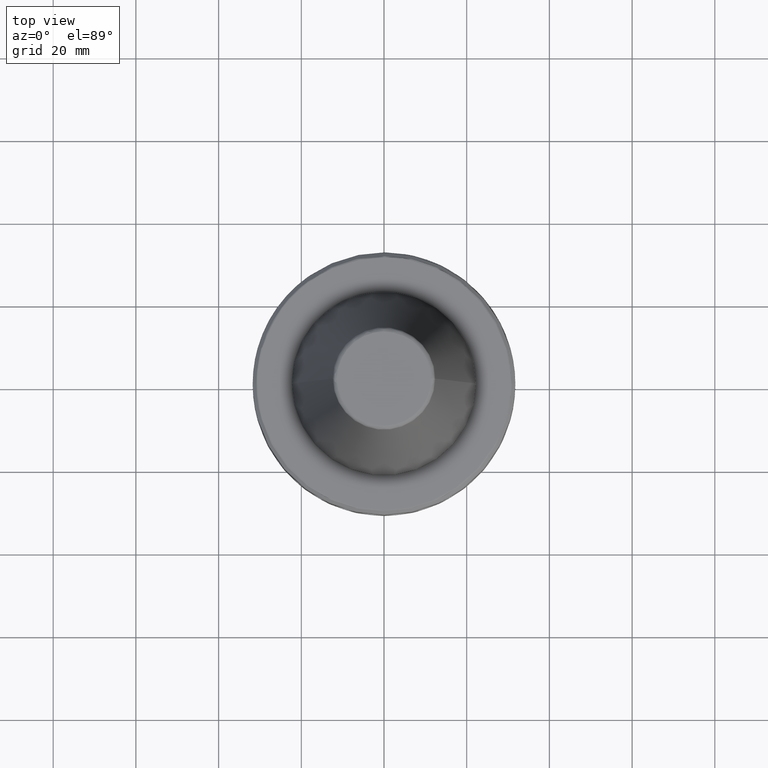
[diagram: clean part render]
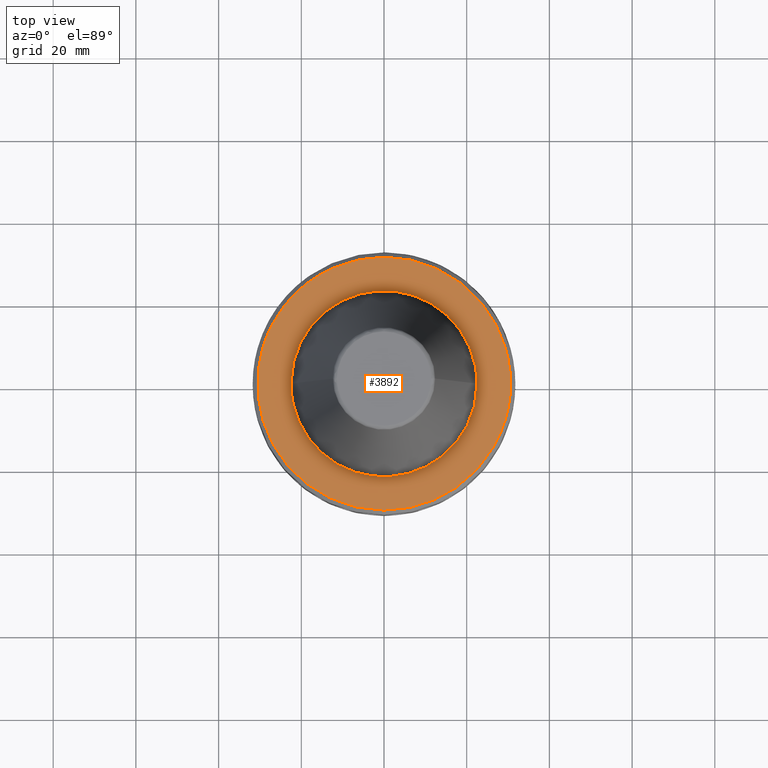
[diagram: same view with one face highlighted and labeled with its STEP entity id]
A machine part, top view. The second image highlights one B-rep face of the part: STEP entity #3892.
In plain terms, the highlighted planar face has unit normal (0, 0, 1).
Its self-contained STEP definition (entity closure, byte-faithful):
#3 = EDGE_CURVE ( 'NONE', #2676, #167, #1679, .T. ) ;
#4 = CARTESIAN_POINT ( 'NONE',  ( -12.10176357993545400, 28.08831770798232300, -3.199999999999999700 ) ) ;
#6 = CARTESIAN_POINT ( 'NONE',  ( -11.95872026362621700, 28.14951867898243900, -3.200000000000000600 ) ) ;
#9 = CARTESIAN_POINT ( 'NONE',  ( -11.74385340892359900, 28.24048383202686100, -3.199999999999999700 ) ) ;
#12 = CARTESIAN_POINT ( 'NONE',  ( -11.24038425294622300, 28.44688173160703600, -3.199999999999999700 ) ) ;
#14 = CARTESIAN_POINT ( 'NONE',  ( -10.22499329430632600, 28.83626103400671100, -3.200000000000001100 ) ) ;
#17 = CARTESIAN_POINT ( 'NONE',  ( -9.340167935440471000, 29.12987215590241500, -3.200000000000000200 ) ) ;
#19 = CARTESIAN_POINT ( 'NONE',  ( -8.594763330018802000, 29.35224666532914000, -3.199999999999999700 ) ) ;
#23 = CARTESIAN_POINT ( 'NONE',  ( -8.442993445781287000, 29.39627059819669700, -3.199999999999999700 ) ) ;
#34 = CARTESIAN_POINT ( 'NONE',  ( -29.30593451889331600, -8.749999999999996400, -3.199999999999998800 ) ) ;
#41 = CARTESIAN_POINT ( 'NONE',  ( -8.141340568208146800, 29.48124923292407100, -3.200000000000000200 ) ) ;
#47 = CARTESIAN_POINT ( 'NONE',  ( -7.688059179597157600, 29.60519698498957200, -3.200000000000000200 ) ) ;
#53 = CARTESIAN_POINT ( 'NONE',  ( -6.624788100412466500, 29.86976700629700000, -3.200000000000000600 ) ) ;
#57 = CARTESIAN_POINT ( 'NONE',  ( -5.703788022667265700, 30.05429890996831700, -3.200000000000000600 ) ) ;
#59 = CARTESIAN_POINT ( 'NONE',  ( -3.848954711156225000, 30.36703951690236300, -3.199999999999999700 ) ) ;
#63 = CARTESIAN_POINT ( 'NONE',  ( -2.603266312792917400, 30.49913331156266900, -3.199999999999999700 ) ) ;
#69 = CARTESIAN_POINT ( 'NONE',  ( -1.037282440228858100, 30.56832190550300200, -3.199999999999999700 ) ) ;
#73 = CARTESIAN_POINT ( 'NONE',  ( -0.7285515701826120700, 30.57722589314201800, -3.200000000000000200 ) ) ;
#76 = CARTESIAN_POINT ( 'NONE',  ( -0.1069271606581389100, 30.58574494882751400, -3.199999999999999700 ) ) ;
#83 = CARTESIAN_POINT ( 'NONE',  ( 0.8252062185939788000, 30.58430088161414800, -3.199999999999999700 ) ) ;
#86 = CARTESIAN_POINT ( 'NONE',  ( 1.756429892742337000, 30.54018886217601600, -3.200000000000001500 ) ) ;
#89 = CARTESIAN_POINT ( 'NONE',  ( 2.454392795801720400, 30.48577087148502700, -3.200000000000001100 ) ) ;
#91 = CARTESIAN_POINT ( 'NONE',  ( 2.528533460625868900, 30.47970956005749700, -3.200000000000000200 ) ) ;
#98 = CARTESIAN_POINT ( 'NONE',  ( 2.680059272117456500, 30.46677238501864700, -3.199999999999999700 ) ) ;
#104 = CARTESIAN_POINT ( 'NONE',  ( 2.907181702349010500, 30.44653720225917900, -3.200000000000000200 ) ) ;
#107 = CARTESIAN_POINT ( 'NONE',  ( 3.435970030515198600, 30.39351583441197100, -3.200000000000000600 ) ) ;
#115 = CARTESIAN_POINT ( 'NONE',  ( 4.488890650684448100, 30.26424933308379300, -3.200000000000001100 ) ) ;
#118 = CARTESIAN_POINT ( 'NONE',  ( 6.576107746370472500, 29.91282126789227600, -3.200000000000000200 ) ) ;
#125 = CARTESIAN_POINT ( 'NONE',  ( 8.333223866125692300, 29.45234853338218900, -3.200000000000001100 ) ) ;
#129 = CARTESIAN_POINT ( 'NONE',  ( 11.80488663214476100, 28.31907149285310900, -3.199999999999999700 ) ) ;
#131 = CARTESIAN_POINT ( 'NONE',  ( 13.99881594507354500, 27.30134385078334700, -3.200000000000000200 ) ) ;
#133 = CARTESIAN_POINT ( 'NONE',  ( 16.13498759199677200, 25.98207429179373300, -3.200000000000000600 ) ) ;
#139 = CARTESIAN_POINT ( 'NONE',  ( 16.20252111302109900, 25.94001894739811600, -3.200000000000000200 ) ) ;
#144 = CARTESIAN_POINT ( 'NONE',  ( 16.33427142386522800, 25.85726144149187200, -3.199999999999999700 ) ) ;
#152 = CARTESIAN_POINT ( 'NONE',  ( 16.53138120580203100, 25.73240088654582200, -3.200000000000000200 ) ) ;
#161 = CARTESIAN_POINT ( 'NONE',  ( 16.98769424001548200, 25.43598951906483700, -3.199999999999999700 ) ) ;
#163 = CARTESIAN_POINT ( 'NONE',  ( 17.88588114721942900, 24.82288649367547600, -3.200000000000000600 ) ) ;
#167 = VERTEX_POINT ( 'NONE', #2241 ) ;
#172 = CARTESIAN_POINT ( 'NONE',  ( 18.63100279129773500, 24.26260340260906600, -3.200000000000000200 ) ) ;
#180 = CARTESIAN_POINT ( 'NONE',  ( 19.23818591257920800, 23.77638626440856500, -3.199999999999999700 ) ) ;
#185 = CARTESIAN_POINT ( 'NONE',  ( 19.36078262649303700, 23.67667543168819600, -3.199999999999998800 ) ) ;
#186 = CARTESIAN_POINT ( 'NONE',  ( 19.60237854230756900, 23.47705769608395700, -3.199999999999999700 ) ) ;
#192 = CARTESIAN_POINT ( 'NONE',  ( 19.96233499367379600, 23.17496761743385400, -3.200000000000001100 ) ) ;
#197 = CARTESIAN_POINT ( 'NONE',  ( 20.78517142370580800, 22.45144644054389700, -3.200000000000000600 ) ) ;
#198 = CARTESIAN_POINT ( 'NONE',  ( 21.46121072403760300, 21.79932372885590300, -3.199999999999999700 ) ) ;
#206 = CARTESIAN_POINT ( 'NONE',  ( 24.72355445173918300, 18.00675945256601200, -3.199999999999999700 ) ) ;
#212 = CARTESIAN_POINT ( 'NONE',  ( 25.08445269890755500, 17.50055599941463700, -3.199999999999999300 ) ) ;
#217 = CARTESIAN_POINT ( 'NONE',  ( 25.61393462944857900, 16.73340307643418300, -3.200000000000000200 ) ) ;
#222 = CARTESIAN_POINT ( 'NONE',  ( 26.10782023935503900, 15.94270692369355700, -3.200000000000000200 ) ) ;
#225 = CARTESIAN_POINT ( 'NONE',  ( 26.46043628646762600, 15.33791319425800600, -3.199999999999999700 ) ) ;
#228 = CARTESIAN_POINT ( 'NONE',  ( 26.49765628487155300, 15.27351905694540000, -3.199999999999998400 ) ) ;
#230 = CARTESIAN_POINT ( 'NONE',  ( 26.57327955334342600, 15.14158967653129700, -3.200000000000000600 ) ) ;
#231 = CARTESIAN_POINT ( 'NONE',  ( 26.68593816532891300, 14.94335966607924600, -3.200000000000000600 ) ) ;
#232 = CARTESIAN_POINT ( 'NONE',  ( -18.49999999999998900, 24.35467712833949600, -3.199999999999994400 ) ) ;
#235 = CARTESIAN_POINT ( 'NONE',  ( 26.94337422490542600, 14.47847139620824700, -3.200000000000001100 ) ) ;
#236 = CARTESIAN_POINT ( 'NONE',  ( 27.43651020383328300, 13.53928854120142800, -3.200000000000000200 ) ) ;
#243 = CARTESIAN_POINT ( 'NONE',  ( 28.33583760078836600, 11.62329757012845600, -3.199999999999998800 ) ) ;
#254 = CARTESIAN_POINT ( 'NONE',  ( 29.30593451889330900, 8.750000000000012400, -3.199999999999994400 ) ) ;
#269 = DIRECTION ( 'NONE',  ( 1.000000000000000000, 0.0000000000000000000, 0.0000000000000000000 ) ) ;
#278 = AXIS2_PLACEMENT_3D ( 'NONE', #4437, #2441, #269 ) ;
#308 = CARTESIAN_POINT ( 'NONE',  ( 29.30593451889330900, -8.750000000000008900, -3.199999999999994400 ) ) ;
#325 = CARTESIAN_POINT ( 'NONE',  ( 28.85918037032343300, -10.24629117988947200, -3.200000000000000600 ) ) ;
#330 = CARTESIAN_POINT ( 'NONE',  ( 28.30117587103202900, -11.69968984090415300, -3.199999999999999700 ) ) ;
#340 = CARTESIAN_POINT ( 'NONE',  ( 27.61100680695616900, -13.15427429998601200, -3.199999999999999700 ) ) ;
#346 = CARTESIAN_POINT ( 'NONE',  ( 27.58831379343183700, -13.20180910046761400, -3.200000000000000600 ) ) ;
#352 = CARTESIAN_POINT ( 'NONE',  ( 27.54438001541331400, -13.29323302809286000, -3.199999999999999300 ) ) ;
#365 = CARTESIAN_POINT ( 'NONE',  ( 27.47815279795422300, -13.43017972973252000, -3.199999999999999300 ) ) ;
#375 = CARTESIAN_POINT ( 'NONE',  ( 28.95764183663448000, 9.916519147392797600, -3.200000000000000200 ) ) ;
#377 = CARTESIAN_POINT ( 'NONE',  ( 27.32133677086397900, -13.74839770497084500, -3.199999999999999700 ) ) ;
#381 = CARTESIAN_POINT ( 'NONE',  ( 26.99856130460733200, -14.37953634109730100, -3.199999999999999300 ) ) ;
#388 = CARTESIAN_POINT ( 'NONE',  ( 26.31643672378944400, -15.62062435594946100, -3.199999999999999700 ) ) ;
#397 = CARTESIAN_POINT ( 'NONE',  ( 25.66906082885188300, -16.64808964170717700, -3.200000000000000600 ) ) ;
#403 = CARTESIAN_POINT ( 'NONE',  ( 25.18089566416734100, -17.35872434408018700, -3.200000000000000200 ) ) ;
#407 = CARTESIAN_POINT ( 'NONE',  ( 25.15049554832750500, -17.40274506740025400, -3.200000000000000200 ) ) ;
#410 = CARTESIAN_POINT ( 'NONE',  ( 25.09107183108401200, -17.48831565733108600, -3.200000000000000200 ) ) ;
#412 = CARTESIAN_POINT ( 'NONE',  ( 25.00162825173771700, -17.61641936752205600, -3.199999999999999300 ) ) ;
#417 = CARTESIAN_POINT ( 'NONE',  ( 24.79077054222909000, -17.91356280169729900, -3.199999999999999300 ) ) ;
#421 = CARTESIAN_POINT ( 'NONE',  ( 24.36043102574261000, -18.50078877829975700, -3.200000000000000600 ) ) ;
#424 = CARTESIAN_POINT ( 'NONE',  ( 23.46525560289278200, -19.64699716451254500, -3.199999999999999700 ) ) ;
#426 = CARTESIAN_POINT ( 'NONE',  ( 22.63882571494687600, -20.58104395213699800, -3.199999999999999700 ) ) ;
#428 = CARTESIAN_POINT ( 'NONE',  ( 21.98943496480729800, -21.25737027114778100, -3.199999999999999300 ) ) ;
#436 = CARTESIAN_POINT ( 'NONE',  ( 21.91487604513283200, -21.33423715766574700, -3.200000000000000200 ) ) ;
#438 = CARTESIAN_POINT ( 'NONE',  ( 21.76708313657502800, -21.48502183609782200, -3.200000000000000200 ) ) ;
#439 = CARTESIAN_POINT ( 'NONE',  ( 21.54431431264827200, -21.70996927688107200, -3.200000000000000200 ) ) ;
#442 = CARTESIAN_POINT ( 'NONE',  ( 21.01696416252214700, -22.22623960065464400, -3.200000000000000600 ) ) ;
#446 = CARTESIAN_POINT ( 'NONE',  ( 19.93203895174852400, -23.22435209598563000, -3.200000000000000600 ) ) ;
#447 = CARTESIAN_POINT ( 'NONE',  ( 18.95028892447729500, -24.02085740247023800, -3.199999999999999300 ) ) ;
#451 = CARTESIAN_POINT ( 'NONE',  ( 16.91770336017169300, -25.53517509608830600, -3.200000000000001100 ) ) ;
#454 = CARTESIAN_POINT ( 'NONE',  ( 15.48792760817607000, -26.42690957759996500, -3.199999999999999700 ) ) ;
#460 = CARTESIAN_POINT ( 'NONE',  ( 13.89121605744795400, -27.24785232259059200, -3.200000000000000200 ) ) ;
#464 = FACE_BOUND ( 'NONE', #1017, .T. ) ;
#466 = CARTESIAN_POINT ( 'NONE',  ( 13.79955834377742900, -27.29438307718488900, -3.200000000000000600 ) ) ;
#467 = CARTESIAN_POINT ( 'NONE',  ( 13.61336996247140800, -27.38773233229924400, -3.200000000000000600 ) ) ;
#472 = CARTESIAN_POINT ( 'NONE',  ( 13.33348093174324800, -27.52628396578551700, -3.200000000000001100 ) ) ;
#478 = CARTESIAN_POINT ( 'NONE',  ( 12.67616131532697400, -27.83926536628994700, -3.200000000000000600 ) ) ;
#484 = CARTESIAN_POINT ( 'NONE',  ( 11.34454123695877000, -28.42400519011132300, -3.200000000000001100 ) ) ;
#485 = CARTESIAN_POINT ( 'NONE',  ( 10.17404257743922200, -28.85454279249395900, -3.200000000000000200 ) ) ;
#499 = CARTESIAN_POINT ( 'NONE',  ( 9.331192961512581300, -29.12613594598227400, -3.199999999999999700 ) ) ;
#502 = CARTESIAN_POINT ( 'NONE',  ( 9.284161809042903000, -29.14115916764381400, -3.200000000000001100 ) ) ;
#516 = CARTESIAN_POINT ( 'NONE',  ( 9.187465360237558400, -29.17179097118053800, -3.200000000000000200 ) ) ;
#520 = CARTESIAN_POINT ( 'NONE',  ( 9.042334779866017400, -29.21737119050853700, -3.200000000000000200 ) ) ;
#528 = CARTESIAN_POINT ( 'NONE',  ( 8.703095408854482100, -29.32115263376776700, -3.200000000000001100 ) ) ;
#533 = CARTESIAN_POINT ( 'NONE',  ( 8.022211266252952600, -29.51842591292832200, -3.200000000000000600 ) ) ;
#535 = CARTESIAN_POINT ( 'NONE',  ( 6.650821378736091900, -29.87181404181786700, -3.200000000000001100 ) ) ;
#537 = CARTESIAN_POINT ( 'NONE',  ( 5.458850156897941700, -30.10416084469766700, -3.200000000000001100 ) ) ;
#539 = CARTESIAN_POINT ( 'NONE',  ( 4.606748291937109700, -30.23542110148339600, -3.200000000000000200 ) ) ;
#543 = CARTESIAN_POINT ( 'NONE',  ( 4.560392810200784900, -30.24244440558974000, -3.200000000000001100 ) ) ;
#551 = CARTESIAN_POINT ( 'NONE',  ( 4.463888020569185300, -30.25684056681974400, -3.200000000000000200 ) ) ;
#558 = CARTESIAN_POINT ( 'NONE',  ( 4.319105167341851000, -30.27808647421275600, -3.199999999999999700 ) ) ;
#559 = CARTESIAN_POINT ( 'NONE',  ( 3.981098828351871300, -30.32522191696598000, -3.199999999999999300 ) ) ;
#560 = ORIENTED_EDGE ( 'NONE', *, *, #709, .T. ) ;
#580 = CARTESIAN_POINT ( 'NONE',  ( 3.304367424533792600, -30.40973943781708800, -3.200000000000000600 ) ) ;
#581 = EDGE_CURVE ( 'NONE', #633, #3762, #3904, .T. ) ;
#583 = CARTESIAN_POINT ( 'NONE',  ( 1.948029713545151400, -30.53976102089800500, -3.200000000000000600 ) ) ;
#585 = CARTESIAN_POINT ( 'NONE',  ( 0.7805261269506218500, -30.58432787733082800, -3.200000000000001100 ) ) ;
#589 = CARTESIAN_POINT ( 'NONE',  ( -1.561052253901251200, -30.58428797049063900, -3.200000000000001100 ) ) ;
#593 = CARTESIAN_POINT ( 'NONE',  ( -3.114025609281771100, -30.46541640380770500, -3.200000000000001100 ) ) ;
#602 = CARTESIAN_POINT ( 'NONE',  ( -4.705085878607798500, -30.22027126947339000, -3.199999999999999700 ) ) ;
#605 = CARTESIAN_POINT ( 'NONE',  ( -4.757131534844059000, -30.21212539776522700, -3.199999999999999700 ) ) ;
#607 = CARTESIAN_POINT ( 'NONE',  ( -4.857303280934896600, -30.19618385839159900, -3.199999999999999700 ) ) ;
#613 = CARTESIAN_POINT ( 'NONE',  ( -5.007473042370389900, -30.17190452210006100, -3.199999999999999700 ) ) ;
#621 = CARTESIAN_POINT ( 'NONE',  ( -5.357254148481244400, -30.11268354680223800, -3.200000000000000200 ) ) ;
#626 = CARTESIAN_POINT ( 'NONE',  ( -6.054356345081719900, -29.98396483373612800, -3.200000000000000600 ) ) ;
#628 = CARTESIAN_POINT ( 'NONE',  ( -7.438720675797749300, -29.68542035772213000, -3.200000000000001500 ) ) ;
#633 = VERTEX_POINT ( 'NONE', #2975 ) ;
#636 = VERTEX_POINT ( 'NONE', #2949 ) ;
#649 = CARTESIAN_POINT ( 'NONE',  ( -8.608449995008770700, -29.35905586419853500, -3.200000000000001100 ) ) ;
#653 = CARTESIAN_POINT ( 'NONE',  ( -9.429042497914499800, -29.09460387900073300, -3.199999999999999700 ) ) ;
#655 = CARTESIAN_POINT ( 'NONE',  ( -9.479920520539453200, -29.07806852477688500, -3.199999999999999700 ) ) ;
#659 = CARTESIAN_POINT ( 'NONE',  ( -9.578915174285629800, -29.04560989628059900, -3.199999999999998800 ) ) ;
#661 = CARTESIAN_POINT ( 'NONE',  ( -9.727253638796373300, -28.99655467839302500, -3.199999999999999700 ) ) ;
#667 = CARTESIAN_POINT ( 'NONE',  ( -10.07230210989505500, -28.87952157731996600, -3.199999999999999700 ) ) ;
#672 = CARTESIAN_POINT ( 'NONE',  ( -10.75810060105365600, -28.63517167116569700, -3.200000000000001100 ) ) ;
#674 = CARTESIAN_POINT ( 'NONE',  ( -12.11250377921570900, -28.10533704282444100, -3.200000000000001100 ) ) ;
#677 = CARTESIAN_POINT ( 'NONE',  ( -13.24394569623152400, -27.58067624819015900, -3.200000000000000200 ) ) ;
#678 = CARTESIAN_POINT ( 'NONE',  ( -29.30593451889331300, 8.749999999999998200, -3.199999999999999300 ) ) ;
#679 = CARTESIAN_POINT ( 'NONE',  ( -14.07778958757470600, -27.15192223847212800, -3.200000000000000200 ) ) ;
#686 = CARTESIAN_POINT ( 'NONE',  ( 17.98264380952407700, -13.61204652636657500, -3.199999999999999700 ) ) ;
#694 = CARTESIAN_POINT ( 'NONE',  ( -14.17277443621685200, -27.10247095659338300, -3.200000000000001100 ) ) ;
#699 = CARTESIAN_POINT ( 'NONE',  ( -14.35953925151881100, -27.00399422411251700, -3.200000000000000200 ) ) ;
#701 = CARTESIAN_POINT ( 'NONE',  ( -14.63881711987122900, -26.85489300920222900, -3.200000000000001100 ) ) ;
#702 = CARTESIAN_POINT ( 'NONE',  ( -15.28437999715645800, -26.49728736108858800, -3.200000000000000600 ) ) ;
#709 = EDGE_CURVE ( 'NONE', #1806, #3100, #2258, .T. ) ;
#716 = CARTESIAN_POINT ( 'NONE',  ( -20.89129424421175700, -22.40114452925585900, -3.200000000000000600 ) ) ;
#718 = CARTESIAN_POINT ( 'NONE',  ( -22.13473294562492200, -21.10604030068834500, -3.200000000000000600 ) ) ;
#721 = CARTESIAN_POINT ( 'NONE',  ( -22.20554153727681200, -21.03152593331544300, -3.199999999999999300 ) ) ;
#727 = DIRECTION ( 'NONE',  ( 1.000000000000000000, 0.0000000000000000000, 0.0000000000000000000 ) ) ;
#733 = CARTESIAN_POINT ( 'NONE',  ( -22.34825637508713900, -20.87982665239790900, -3.200000000000001500 ) ) ;
#735 = CARTESIAN_POINT ( 'NONE',  ( -22.56109142493673000, -20.65127541915737900, -3.200000000000000600 ) ) ;
#736 = DIRECTION ( 'NONE',  ( -0.0000000000000000000, -0.0000000000000000000, 1.000000000000000000 ) ) ;
#739 = CARTESIAN_POINT ( 'NONE',  ( 0.0000000000000000000, 0.0000000000000000000, -3.199999999999994400 ) ) ;
#741 = CARTESIAN_POINT ( 'NONE',  ( -23.04904609319123300, -20.11097302521331900, -3.200000000000000200 ) ) ;
#750 = CARTESIAN_POINT ( 'NONE',  ( -23.99031363745548300, -19.00230350512726600, -3.200000000000000600 ) ) ;
#751 = CARTESIAN_POINT ( 'NONE',  ( -24.73772846011950200, -18.00390437557129500, -3.200000000000000200 ) ) ;
#757 = CARTESIAN_POINT ( 'NONE',  ( -25.23910393721313400, -17.27398592321366200, -3.200000000000001100 ) ) ;
#758 = CARTESIAN_POINT ( 'NONE',  ( -25.26695455758113700, -17.23321866383605500, -3.200000000000001100 ) ) ;
#765 = CARTESIAN_POINT ( 'NONE',  ( -25.32397030503197800, -17.14932757287309400, -3.200000000000000200 ) ) ;
#770 = CARTESIAN_POINT ( 'NONE',  ( -25.40916637816790300, -17.02330348439377500, -3.199999999999999700 ) ) ;
#777 = CARTESIAN_POINT ( 'NONE',  ( -25.60566437920282500, -16.72793511369776800, -3.200000000000000600 ) ) ;
#785 = CARTESIAN_POINT ( 'NONE',  ( -25.98948903614357400, -16.13194971532871900, -3.200000000000000200 ) ) ;
#791 = CARTESIAN_POINT ( 'NONE',  ( -26.72045296950875900, -14.91898429068247500, -3.200000000000000200 ) ) ;
#799 = CARTESIAN_POINT ( 'NONE',  ( -27.28410426007954800, -13.84330885028605000, -3.200000000000000200 ) ) ;
#805 = CARTESIAN_POINT ( 'NONE',  ( -27.65365956857779000, -13.06437642884152300, -3.199999999999999700 ) ) ;
#807 = CARTESIAN_POINT ( 'NONE',  ( -27.67364674244907600, -13.02197758003594400, -3.199999999999999700 ) ) ;
#810 = CARTESIAN_POINT ( 'NONE',  ( -27.71504625243985500, -12.93363446210846000, -3.200000000000001100 ) ) ;
#812 = CARTESIAN_POINT ( 'NONE',  ( -27.77681930598673100, -12.80099507029792100, -3.199999999999999300 ) ) ;
#818 = CARTESIAN_POINT ( 'NONE',  ( -27.91867295085469900, -12.49063015163826100, -3.200000000000000600 ) ) ;
#827 = CARTESIAN_POINT ( 'NONE',  ( -28.19324632029157800, -11.86640829657864900, -3.200000000000000200 ) ) ;
#830 = CARTESIAN_POINT ( 'NONE',  ( -28.70585737796907100, -10.60399651549823100, -3.199999999999999700 ) ) ;
#832 = CARTESIAN_POINT ( 'NONE',  ( -29.08260568821333100, -9.497984010067261500, -3.200000000000000600 ) ) ;
#977 = ORIENTED_EDGE ( 'NONE', *, *, #1173, .T. ) ;
#1017 = EDGE_LOOP ( 'NONE', ( #2367, #1482 ) ) ;
#1087 = VERTEX_POINT ( 'NONE', #1139 ) ;
#1139 = CARTESIAN_POINT ( 'NONE',  ( 29.30593451889330900, -8.750000000000008900, -3.199999999999994400 ) ) ;
#1173 = EDGE_CURVE ( 'NONE', #636, #1087, #2440, .T. ) ;
#1227 = CARTESIAN_POINT ( 'NONE',  ( 18.88550870197563500, -12.23098025896565000, -3.200000000000000200 ) ) ;
#1278 = AXIS2_PLACEMENT_3D ( 'NONE', #3511, #2095, #1440 ) ;
#1282 = AXIS2_PLACEMENT_3D ( 'NONE', #739, #736, #727 ) ;
#1304 = VERTEX_POINT ( 'NONE', #232 ) ;
#1328 = B_SPLINE_CURVE_WITH_KNOTS ( 'NONE', 3,
 ( #254, #375, #243, #236, #235, #231, #230, #228, #225, #222, #217, #212, #206, #1862, #4224, #2194, #198, #197, #192, #186, #185, #180, #172, #163, #161, #152, #144, #139, #133, #131, #129, #125, #118, #115, #107, #104, #98, #91, #89, #86, #83, #76, #73, #69, #63, #59, #57, #53, #47, #41, #23, #19, #17, #14, #12, #9, #6, #4, #4393, #3464, #4046, #4003 ),
 .UNSPECIFIED., .F., .F.,
 ( 4, 1, 1, 1, 1, 2, 2, 1, 2, 2, 2, 1, 1, 2, 2, 1, 1, 1, 2, 2, 2, 1, 1, 1, 1, 2, 2, 1, 2, 2, 2, 1, 1, 2, 2, 1, 1, 1, 2, 2, 4 ),
 ( 0.0000000000000000000, 0.06249999999999870900, 0.09374999999999798800, 0.1093749999999975700, 0.1171874999999973800, 0.1210937499999973600, 0.1249999999999973400, 0.1562499999999976700, 0.1718749999999978100, 0.1874999999999979500, 0.2499999999999983900, 0.2812499999999985000, 0.2968749999999986700, 0.3046874999999987800, 0.3124999999999988900, 0.3437499999999996700, 0.3593750000000000000, 0.3671875000000002200, 0.3710937500000002800, 0.3750000000000002800, 0.4999999999999998900, 0.5624999999999996700, 0.5937499999999996700, 0.6093749999999996700, 0.6171874999999995600, 0.6210937499999995600, 0.6249999999999996700, 0.6562499999999995600, 0.6718749999999994400, 0.6874999999999993300, 0.7499999999999990000, 0.7812499999999990000, 0.7968749999999988900, 0.8046874999999988900, 0.8124999999999990000, 0.8437499999999994400, 0.8593749999999996700, 0.8671874999999997800, 0.8710937499999997800, 0.8749999999999997800, 1.000000000000000000 ),
 .UNSPECIFIED. ) ;
#1440 = DIRECTION ( 'NONE',  ( 1.000000000000000000, 0.0000000000000000000, -0.0000000000000000000 ) ) ;
#1462 = CARTESIAN_POINT ( 'NONE',  ( 9.504079748831721000, -20.40055232577914500, -3.200000000000000600 ) ) ;
#1471 = ORIENTED_EDGE ( 'NONE', *, *, #3063, .T. ) ;
#1482 = ORIENTED_EDGE ( 'NONE', *, *, #581, .T. ) ;
#1522 = ORIENTED_EDGE ( 'NONE', *, *, #4278, .T. ) ;
#1604 = CARTESIAN_POINT ( 'NONE',  ( -9.504079748845599700, 20.40055232577251900, -3.200000000000001500 ) ) ;
#1679 = CIRCLE ( 'NONE', #2354, 30.58431457505076500 ) ;
#1767 = CARTESIAN_POINT ( 'NONE',  ( 30.58431457505076500, 0.0000000000000000000, -3.199999999999996600 ) ) ;
#1806 = VERTEX_POINT ( 'NONE', #4476 ) ;
#1862 = CARTESIAN_POINT ( 'NONE',  ( 24.54047191479334700, 18.25550594145703400, -3.199999999999999700 ) ) ;
#1878 = DIRECTION ( 'NONE',  ( -0.0000000000000000000, -0.0000000000000000000, 1.000000000000000000 ) ) ;
#1941 = CARTESIAN_POINT ( 'NONE',  ( -16.55116382291200600, -25.74326481156942100, -3.200000000000000200 ) ) ;
#1942 = CARTESIAN_POINT ( 'NONE',  ( -17.59524950987690100, -25.03042619205264800, -3.200000000000000600 ) ) ;
#2058 = EDGE_LOOP ( 'NONE', ( #4213, #560, #1522, #977, #1471, #4532, #2989 ) ) ;
#2095 = DIRECTION ( 'NONE',  ( 0.0000000000000000000, 0.0000000000000000000, 1.000000000000000000 ) ) ;
#2194 = CARTESIAN_POINT ( 'NONE',  ( 22.77429056701172200, 20.45246270157970500, -3.200000000000000200 ) ) ;
#2205 = EDGE_CURVE ( 'NONE', #3762, #633, #2713, .T. ) ;
#2241 = CARTESIAN_POINT ( 'NONE',  ( 29.30593451889330900, 8.750000000000012400, -3.199999999999994400 ) ) ;
#2258 = B_SPLINE_CURVE_WITH_KNOTS ( 'NONE', 3,
 ( #2531, #2546, #2549, #2519, #2513, #2502 ),
 .UNSPECIFIED., .F., .F.,
 ( 4, 2, 4 ),
 ( 0.0000000000000000000, 0.5000000000000000000, 1.000000000000000000 ),
 .UNSPECIFIED. ) ;
#2354 = AXIS2_PLACEMENT_3D ( 'NONE', #3219, #2991, #2985 ) ;
#2355 = CARTESIAN_POINT ( 'NONE',  ( -19.62778218937258900, -23.51603751692341100, -3.199999999999999300 ) ) ;
#2367 = ORIENTED_EDGE ( 'NONE', *, *, #2205, .T. ) ;
#2440 = B_SPLINE_CURVE_WITH_KNOTS ( 'NONE', 3,
 ( #34, #832, #830, #827, #818, #812, #810, #807, #805, #799, #791, #785, #777, #770, #765, #758, #757, #751, #750, #741, #735, #733, #721, #718, #716, #2355, #1942, #1941, #702, #701, #699, #694, #679, #677, #674, #672, #667, #661, #659, #655, #653, #649, #628, #626, #621, #613, #607, #605, #602, #593, #589, #585, #583, #580, #559, #558, #551, #543, #539, #537, #535, #533, #528, #520, #516, #502, #499, #485, #484, #478, #472, #467, #466, #460, #454, #451, #447, #446, #442, #439, #438, #436, #428, #426, #424, #421, #417, #412, #410, #407, #403, #397, #388, #381, #377, #365, #352, #346, #340, #330, #325, #308 ),
 .UNSPECIFIED., .F., .F.,
 ( 4, 1, 1, 1, 1, 2, 2, 1, 1, 1, 1, 2, 2, 1, 1, 1, 2, 2, 2, 1, 1, 1, 2, 2, 1, 1, 1, 1, 2, 2, 1, 1, 1, 1, 2, 2, 2, 1, 1, 1, 1, 2, 2, 1, 1, 1, 1, 2, 2, 1, 1, 1, 2, 2, 2, 1, 1, 1, 2, 2, 1, 1, 1, 1, 2, 2, 1, 1, 1, 1, 2, 2, 4 ),
 ( 0.0000000000000000000, 0.03124999999999919500, 0.04687499999999875800, 0.05468749999999856400, 0.05859374999999844600, 0.06054687499999843900, 0.06249999999999844600, 0.09374999999999855700, 0.1093749999999986000, 0.1171874999999986000, 0.1210937499999986000, 0.1230468749999985800, 0.1249999999999985600, 0.1562499999999976100, 0.1718749999999971700, 0.1796874999999970000, 0.1835937499999970300, 0.1874999999999970300, 0.2499999999999989500, 0.2812499999999998900, 0.2968750000000004400, 0.3046875000000007800, 0.3085937500000008900, 0.3125000000000010000, 0.3437500000000016100, 0.3593750000000019400, 0.3671875000000020500, 0.3710937500000021100, 0.3730468750000021100, 0.3750000000000021100, 0.4062500000000018300, 0.4218750000000017200, 0.4296875000000016700, 0.4335937500000016100, 0.4355468750000016100, 0.4375000000000016100, 0.5000000000000015500, 0.5312500000000015500, 0.5468750000000015500, 0.5546875000000015500, 0.5585937500000015500, 0.5605468750000016700, 0.5625000000000016700, 0.5937500000000018900, 0.6093750000000020000, 0.6171875000000020000, 0.6210937500000020000, 0.6230468750000020000, 0.6250000000000021100, 0.6562500000000026600, 0.6718750000000028900, 0.6796875000000030000, 0.6835937500000031100, 0.6875000000000032200, 0.7500000000000041100, 0.7812500000000045500, 0.7968750000000046600, 0.8046875000000046600, 0.8085937500000046600, 0.8125000000000046600, 0.8437500000000041100, 0.8593750000000038900, 0.8671875000000036600, 0.8710937500000035500, 0.8730468750000034400, 0.8750000000000034400, 0.9062500000000036600, 0.9218750000000037700, 0.9296875000000037700, 0.9335937500000037700, 0.9355468750000037700, 0.9375000000000036600, 1.000000000000000000 ),
 .UNSPECIFIED. ) ;
#2441 = DIRECTION ( 'NONE',  ( -0.0000000000000000000, -0.0000000000000000000, 1.000000000000000000 ) ) ;
#2460 = CIRCLE ( 'NONE', #1282, 30.58431457505076500 ) ;
#2502 = CARTESIAN_POINT ( 'NONE',  ( -29.30593451889331300, 8.749999999999998200, -3.199999999999999300 ) ) ;
#2513 = CARTESIAN_POINT ( 'NONE',  ( -28.78023418526195300, 10.51070166330983600, -3.200000000000000200 ) ) ;
#2519 = CARTESIAN_POINT ( 'NONE',  ( -28.10145510425815400, 12.21006217782732200, -3.200000000000000200 ) ) ;
#2531 = CARTESIAN_POINT ( 'NONE',  ( -24.35467712833948900, 18.50000000000000000, -3.199999999999994400 ) ) ;
#2546 = CARTESIAN_POINT ( 'NONE',  ( -25.46593605708334400, 17.03706203159250900, -3.199999999999999700 ) ) ;
#2549 = CARTESIAN_POINT ( 'NONE',  ( -26.43773944750569900, 15.48610090927757100, -3.200000000000000600 ) ) ;
#2663 = CARTESIAN_POINT ( 'NONE',  ( 10.69502432678837800, -19.82135572083744200, -3.199999999999999700 ) ) ;
#2676 = VERTEX_POINT ( 'NONE', #1767 ) ;
#2713 = B_SPLINE_CURVE_WITH_KNOTS ( 'NONE', 3,
 ( #3372, #3402, #3352, #3348, #3346, #3342, #3340, #3339, #3336, #3335, #3328, #3324, #3318, #3311, #3306, #3304, #3297, #3296, #3295, #3291, #3284, #3282, #3277, #3269, #3267, #3265, #3259, #3252, #3250, #3244, #3234, #3232, #3228, #3222, #3217, #3647, #1604, #3960, #3212, #3209, #3193, #3191, #3187, #3180, #3170, #3164, #3161, #3158, #3156, #3147, #3141, #3140, #3130, #3127, #3121, #3119, #3112, #3108, #3104, #3102, #3099, #3096, #3091, #3084, #3075, #3073, #3067, #3059, #3056, #3054, #3049, #3045, #3043, #3037, #3033, #3030, #3023, #3020, #3019, #3015, #3012, #3009, #3007, #3006, #3002, #2997, #2992, #2990, #2980, #2976, #2969, #2966, #2959, #2955, #2950, #2948, #2946, #2945, #2943, #2936, #2932, #2926, #2918, #2914, #2911, #2904 ),
 .UNSPECIFIED., .F., .F.,
 ( 4, 1, 1, 1, 1, 1, 2, 2, 1, 1, 1, 1, 2, 2, 1, 1, 1, 2, 2, 2, 1, 1, 1, 2, 2, 1, 1, 1, 1, 2, 2, 1, 1, 1, 1, 1, 2, 2, 2, 1, 1, 1, 1, 1, 2, 2, 1, 1, 1, 1, 2, 2, 1, 1, 1, 2, 2, 2, 1, 1, 1, 2, 2, 1, 1, 1, 1, 2, 2, 1, 1, 1, 1, 1, 2, 2, 4 ),
 ( 0.0000000000000000000, 0.03124999999999839000, 0.04687499999999758500, 0.05468749999999717600, 0.05859374999999699500, 0.06054687499999689800, 0.06152343749999685700, 0.06249999999999680800, 0.09374999999999644700, 0.1093749999999962800, 0.1171874999999962000, 0.1210937499999961300, 0.1230468749999961400, 0.1249999999999961400, 0.1562499999999958900, 0.1718749999999958400, 0.1796874999999957800, 0.1835937499999957800, 0.1874999999999957800, 0.2499999999999961100, 0.2812499999999963400, 0.2968749999999964500, 0.3046874999999965000, 0.3085937499999965600, 0.3124999999999965600, 0.3437499999999969500, 0.3593749999999971700, 0.3671874999999973400, 0.3710937499999974500, 0.3730468749999974500, 0.3749999999999974500, 0.4062499999999965000, 0.4218749999999960000, 0.4296874999999957800, 0.4335937499999956700, 0.4355468749999956100, 0.4365234374999956100, 0.4374999999999956100, 0.4999999999999944500, 0.5312499999999938900, 0.5468749999999936700, 0.5546874999999936700, 0.5585937499999935600, 0.5605468749999935600, 0.5615234374999934500, 0.5624999999999934500, 0.5937499999999932300, 0.6093749999999931200, 0.6171874999999931200, 0.6210937499999930100, 0.6230468749999930100, 0.6249999999999930100, 0.6562499999999930100, 0.6718749999999931200, 0.6796874999999932300, 0.6835937499999932300, 0.6874999999999932300, 0.7499999999999935600, 0.7812499999999936700, 0.7968749999999937800, 0.8046874999999938900, 0.8085937499999938900, 0.8124999999999938900, 0.8437499999999942300, 0.8593749999999944500, 0.8671874999999946700, 0.8710937499999947800, 0.8730468749999948900, 0.8749999999999950000, 0.9062499999999963400, 0.9218749999999971100, 0.9296874999999975600, 0.9335937499999976700, 0.9355468749999977800, 0.9365234374999977800, 0.9374999999999978900, 1.000000000000000000 ),
 .UNSPECIFIED. ) ;
#2810 = CARTESIAN_POINT ( 'NONE',  ( 17.00797338681919900, -14.81177920651095200, -3.200000000000000600 ) ) ;
#2856 = CARTESIAN_POINT ( 'NONE',  ( 11.67597141480891300, -19.24838585783804100, -3.200000000000000600 ) ) ;
#2904 = CARTESIAN_POINT ( 'NONE',  ( 22.50000000000000400, 0.0000000000000000000, -3.199999999999999300 ) ) ;
#2911 = CARTESIAN_POINT ( 'NONE',  ( 22.50000000000000400, 1.376388306145680500, -3.200000000000000200 ) ) ;
#2913 = CARTESIAN_POINT ( 'NONE',  ( -22.50000000000000700, -1.376388306158772500, -3.200000000000000600 ) ) ;
#2914 = CARTESIAN_POINT ( 'NONE',  ( 22.37479026312431400, 2.741111199236805400, -3.200000000000000600 ) ) ;
#2916 = CARTESIAN_POINT ( 'NONE',  ( -22.50000000000000400, 2.755455298081544800E-015, -3.199999999999999300 ) ) ;
#2918 = CARTESIAN_POINT ( 'NONE',  ( 22.12045798509555900, 4.115310202398825700, -3.200000000000000600 ) ) ;
#2926 = CARTESIAN_POINT ( 'NONE',  ( 22.11603594838275600, 4.139014538616730300, -3.200000000000001100 ) ) ;
#2932 = CARTESIAN_POINT ( 'NONE',  ( 22.10760170058146200, 4.183831549483062200, -3.200000000000000200 ) ) ;
#2936 = CARTESIAN_POINT ( 'NONE',  ( 22.09485092206839200, 4.251028217305421500, -3.199999999999999700 ) ) ;
#2943 = CARTESIAN_POINT ( 'NONE',  ( 22.06440325786003600, 4.407618502884258900, -3.200000000000000200 ) ) ;
#2945 = CARTESIAN_POINT ( 'NONE',  ( 22.00072453873180600, 4.719991316681966300, -3.200000000000000200 ) ) ;
#2946 = CARTESIAN_POINT ( 'NONE',  ( 21.86223353762935800, 5.341505914837489000, -3.200000000000000600 ) ) ;
#2948 = CARTESIAN_POINT ( 'NONE',  ( 21.54071728404044400, 6.571610993388965500, -3.200000000000000200 ) ) ;
#2949 = CARTESIAN_POINT ( 'NONE',  ( -29.30593451889331600, -8.749999999999996400, -3.199999999999998800 ) ) ;
#2950 = CARTESIAN_POINT ( 'NONE',  ( 21.18878749287739200, 7.603831144559534600, -3.200000000000000600 ) ) ;
#2955 = CARTESIAN_POINT ( 'NONE',  ( 20.90345235396888100, 8.324524703928553000, -3.200000000000000200 ) ) ;
#2959 = CARTESIAN_POINT ( 'NONE',  ( 20.88510905071724400, 8.370451108366499000, -3.200000000000001100 ) ) ;
#2966 = CARTESIAN_POINT ( 'NONE',  ( 20.84958280862257900, 8.458563634141711400, -3.200000000000000200 ) ) ;
#2969 = CARTESIAN_POINT ( 'NONE',  ( 20.79589492657334300, 8.590524805355373800, -3.199999999999999300 ) ) ;
#2975 = CARTESIAN_POINT ( 'NONE',  ( 22.50000000000000400, 0.0000000000000000000, -3.199999999999999300 ) ) ;
#2976 = CARTESIAN_POINT ( 'NONE',  ( 20.66783356944120300, 8.896980882709847500, -3.200000000000000200 ) ) ;
#2980 = CARTESIAN_POINT ( 'NONE',  ( 20.40055232577446300, 9.504079748842523000, -3.200000000000000600 ) ) ;
#2985 = DIRECTION ( 'NONE',  ( 1.000000000000000000, 0.0000000000000000000, 0.0000000000000000000 ) ) ;
#2989 = ORIENTED_EDGE ( 'NONE', *, *, #3210, .T. ) ;
#2990 = CARTESIAN_POINT ( 'NONE',  ( 19.82135572083119300, 10.69502432680279600, -3.200000000000000600 ) ) ;
#2991 = DIRECTION ( 'NONE',  ( -0.0000000000000000000, -0.0000000000000000000, 1.000000000000000000 ) ) ;
#2992 = CARTESIAN_POINT ( 'NONE',  ( 19.24838585783446000, 11.67597141481715200, -3.199999999999999700 ) ) ;
#2997 = CARTESIAN_POINT ( 'NONE',  ( 18.78040064549280100, 12.39175045570927500, -3.199999999999998800 ) ) ;
#3002 = CARTESIAN_POINT ( 'NONE',  ( 18.72563884435662000, 12.47437238289156800, -3.199999999999999300 ) ) ;
#3006 = CARTESIAN_POINT ( 'NONE',  ( 18.61742605471209400, 12.63533988221464600, -3.199999999999999700 ) ) ;
#3007 = CARTESIAN_POINT ( 'NONE',  ( 18.45365423866382000, 12.87560569879649600, -3.200000000000000200 ) ) ;
#3009 = CARTESIAN_POINT ( 'NONE',  ( 18.06135158014742400, 13.42792791066801300, -3.200000000000000600 ) ) ;
#3012 = CARTESIAN_POINT ( 'NONE',  ( 17.23607257883289300, 14.49938022713325700, -3.200000000000000200 ) ) ;
#3015 = CARTESIAN_POINT ( 'NONE',  ( 16.45896426179462000, 15.36086717162726200, -3.199999999999999700 ) ) ;
#3019 = CARTESIAN_POINT ( 'NONE',  ( 14.81177920650271000, 17.00797338683744500, -3.200000000000000600 ) ) ;
#3020 = CARTESIAN_POINT ( 'NONE',  ( 13.61204652639695000, 17.98264380950372400, -3.200000000000000200 ) ) ;
#3023 = CARTESIAN_POINT ( 'NONE',  ( 12.23098025896375600, 18.88550870197690300, -3.199999999999999700 ) ) ;
#3030 = CARTESIAN_POINT ( 'NONE',  ( 12.15280497093997500, 18.93590339580323000, -3.200000000000000200 ) ) ;
#3031 = CIRCLE ( 'NONE', #278, 30.58431457505076500 ) ;
#3033 = CARTESIAN_POINT ( 'NONE',  ( 11.99256734167953400, 19.03780993567986700, -3.199999999999999300 ) ) ;
#3037 = CARTESIAN_POINT ( 'NONE',  ( 11.75138774875418000, 19.18907189198790100, -3.200000000000001100 ) ) ;
#3043 = CARTESIAN_POINT ( 'NONE',  ( 11.18287332201877700, 19.53083148215803900, -3.200000000000000600 ) ) ;
#3045 = CARTESIAN_POINT ( 'NONE',  ( 10.02279629557633300, 20.16961076430403600, -3.200000000000000600 ) ) ;
#3049 = CARTESIAN_POINT ( 'NONE',  ( 8.988933404959995600, 20.64043889495324200, -3.200000000000000600 ) ) ;
#3054 = CARTESIAN_POINT ( 'NONE',  ( 8.237955812653522600, 20.93772414133914200, -3.199999999999999700 ) ) ;
#3056 = CARTESIAN_POINT ( 'NONE',  ( 8.197263642342381500, 20.95368502148494400, -3.199999999999999700 ) ) ;
#3058 = CARTESIAN_POINT ( 'NONE',  ( -22.37479026312430700, -2.741111199249898400, -3.200000000000000600 ) ) ;
#3059 = CARTESIAN_POINT ( 'NONE',  ( 8.112282896138385300, 20.98673507276721400, -3.200000000000000200 ) ) ;
#3063 = EDGE_CURVE ( 'NONE', #1087, #2676, #2460, .T. ) ;
#3064 = CARTESIAN_POINT ( 'NONE',  ( -22.12045798509555200, -4.115310202398622300, -3.200000000000000200 ) ) ;
#3067 = CARTESIAN_POINT ( 'NONE',  ( 7.984698353428139100, 21.03591195339260300, -3.200000000000000200 ) ) ;
#3068 = CARTESIAN_POINT ( 'NONE',  ( -22.11603594838243900, -4.139014538617989700, -3.200000000000000600 ) ) ;
#3073 = CARTESIAN_POINT ( 'NONE',  ( 7.686207123274499500, 21.14787063409919600, -3.200000000000000600 ) ) ;
#3074 = CARTESIAN_POINT ( 'NONE',  ( -22.10760170058084000, -4.183831549485550900, -3.200000000000000200 ) ) ;
#3075 = CARTESIAN_POINT ( 'NONE',  ( 7.086048807648322300, 21.36063849916836300, -3.200000000000000600 ) ) ;
#3081 = CARTESIAN_POINT ( 'NONE',  ( -22.09485092206732700, -4.251028217309717600, -3.200000000000000600 ) ) ;
#3084 = CARTESIAN_POINT ( 'NONE',  ( 5.873028755120320600, 21.74157624393063400, -3.200000000000000600 ) ) ;
#3088 = CARTESIAN_POINT ( 'NONE',  ( -22.06440325785796100, -4.407618502892575000, -3.200000000000000200 ) ) ;
#3091 = CARTESIAN_POINT ( 'NONE',  ( 4.811519987909519200, 21.99164062165363400, -3.200000000000000200 ) ) ;
#3096 = CARTESIAN_POINT ( 'NONE',  ( 4.071751450878374500, 22.12851860711415200, -3.200000000000000200 ) ) ;
#3099 = CARTESIAN_POINT ( 'NONE',  ( 4.051866326834534100, 22.13216683465163800, -3.200000000000001100 ) ) ;
#3100 = VERTEX_POINT ( 'NONE', #678 ) ;
#3102 = CARTESIAN_POINT ( 'NONE',  ( 4.009555819168163300, 22.13987114982794000, -3.199999999999999700 ) ) ;
#3103 = CARTESIAN_POINT ( 'NONE',  ( -22.00072453872795100, -4.719991316697491600, -3.200000000000000600 ) ) ;
#3104 = CARTESIAN_POINT ( 'NONE',  ( 3.946081902440961000, 22.15133589249003200, -3.200000000000000600 ) ) ;
#3108 = CARTESIAN_POINT ( 'NONE',  ( 3.797919010150632600, 22.17744484798479100, -3.200000000000000600 ) ) ;
#3109 = AXIS2_PLACEMENT_3D ( 'NONE', #3915, #1878, #4238 ) ;
#3112 = CARTESIAN_POINT ( 'NONE',  ( 3.501364879195867800, 22.22709431610727600, -3.200000000000000600 ) ) ;
#3113 = CARTESIAN_POINT ( 'NONE',  ( -21.86223353762273500, -5.341505914864100600, -3.200000000000000600 ) ) ;
#3118 = CARTESIAN_POINT ( 'NONE',  ( -21.54071728403163600, -6.571610993424445500, -3.200000000000000600 ) ) ;
#3119 = CARTESIAN_POINT ( 'NONE',  ( 2.907343231789928200, 22.31611948088413700, -3.200000000000001100 ) ) ;
#3120 = CARTESIAN_POINT ( 'NONE',  ( -21.18878749287234700, -7.603831144579803700, -3.199999999999998800 ) ) ;
#3121 = CARTESIAN_POINT ( 'NONE',  ( 1.715646394992351700, 22.45307472456536100, -3.200000000000000600 ) ) ;
#3126 = CARTESIAN_POINT ( 'NONE',  ( -20.90345235396920400, -8.324524703927284700, -3.199999999999999700 ) ) ;
#3127 = CARTESIAN_POINT ( 'NONE',  ( 0.6879287486189594700, 22.50001621479642500, -3.199999999999999300 ) ) ;
#3130 = CARTESIAN_POINT ( 'NONE',  ( -1.375857497237935400, 22.49996757040714000, -3.199999999999999700 ) ) ;
#3132 = CARTESIAN_POINT ( 'NONE',  ( -20.88510905071626700, -8.370451108368008900, -3.199999999999999700 ) ) ;
#3133 = CARTESIAN_POINT ( 'NONE',  ( -20.84958280862066700, -8.458563634144654800, -3.200000000000000600 ) ) ;
#3139 = CARTESIAN_POINT ( 'NONE',  ( -20.79589492657008900, -8.590524805360397300, -3.200000000000000200 ) ) ;
#3140 = CARTESIAN_POINT ( 'NONE',  ( -2.741286511587084400, 22.37475781688785000, -3.200000000000000200 ) ) ;
#3141 = CARTESIAN_POINT ( 'NONE',  ( -4.115307463143350800, 22.12045849206799600, -3.199999999999999700 ) ) ;
#3147 = CARTESIAN_POINT ( 'NONE',  ( -4.139014538617297000, 22.11603594838256000, -3.200000000000000200 ) ) ;
#3152 = CARTESIAN_POINT ( 'NONE',  ( -20.66783356943510700, -8.896980882719226700, -3.200000000000000200 ) ) ;
#3155 = CARTESIAN_POINT ( 'NONE',  ( -20.40055232576401100, -9.504079748858595500, -3.199999999999999700 ) ) ;
#3156 = CARTESIAN_POINT ( 'NONE',  ( -4.183831549484186700, 22.10760170058108200, -3.199999999999999700 ) ) ;
#3158 = CARTESIAN_POINT ( 'NONE',  ( -4.251028217307362100, 22.09485092206773900, -3.200000000000001100 ) ) ;
#3159 = PLANE ( 'NONE',  #1278 ) ;
#3161 = CARTESIAN_POINT ( 'NONE',  ( -4.407618502888016800, 22.06440325785875700, -3.199999999999999300 ) ) ;
#3164 = CARTESIAN_POINT ( 'NONE',  ( -4.719991316688983800, 22.00072453872944300, -3.200000000000000600 ) ) ;
#3165 = CARTESIAN_POINT ( 'NONE',  ( -19.82135572081725200, -10.69502432682423000, -3.200000000000000600 ) ) ;
#3168 = CARTESIAN_POINT ( 'NONE',  ( -19.24838585782649900, -11.67597141482940200, -3.199999999999999700 ) ) ;
#3170 = CARTESIAN_POINT ( 'NONE',  ( -5.341505914849514100, 21.86223353762529300, -3.200000000000000600 ) ) ;
#3180 = CARTESIAN_POINT ( 'NONE',  ( -6.571610993404996200, 21.54071728403503300, -3.199999999999999700 ) ) ;
#3187 = CARTESIAN_POINT ( 'NONE',  ( -7.603831144568696100, 21.18878749287429700, -3.200000000000000200 ) ) ;
#3191 = CARTESIAN_POINT ( 'NONE',  ( -8.324524703927975700, 20.90345235396907600, -3.199999999999999700 ) ) ;
#3192 = CARTESIAN_POINT ( 'NONE',  ( -18.78040064549380300, -12.39175045570773800, -3.200000000000000600 ) ) ;
#3193 = CARTESIAN_POINT ( 'NONE',  ( -8.370451108366790300, 20.88510905071707000, -3.200000000000000200 ) ) ;
#3202 = CARTESIAN_POINT ( 'NONE',  ( -18.72563884435658800, -12.47437238289159500, -3.200000000000000200 ) ) ;
#3208 = CARTESIAN_POINT ( 'NONE',  ( -18.61742605471202700, -12.63533988221470800, -3.199999999999999700 ) ) ;
#3209 = CARTESIAN_POINT ( 'NONE',  ( -8.458563634142274500, 20.84958280862222700, -3.200000000000000200 ) ) ;
#3210 = EDGE_CURVE ( 'NONE', #167, #1304, #1328, .T. ) ;
#3212 = CARTESIAN_POINT ( 'NONE',  ( -8.590524805356333000, 20.79589492657273900, -3.199999999999999700 ) ) ;
#3217 = CARTESIAN_POINT ( 'NONE',  ( -11.67597141481949700, 19.24838585783297900, -3.200000000000001100 ) ) ;
#3219 = CARTESIAN_POINT ( 'NONE',  ( 0.0000000000000000000, 0.0000000000000000000, -3.199999999999994400 ) ) ;
#3222 = CARTESIAN_POINT ( 'NONE',  ( -12.39175045570897300, 18.78040064549299600, -3.199999999999999700 ) ) ;
#3226 = CARTESIAN_POINT ( 'NONE',  ( -18.45365423866372400, -12.87560569879659900, -3.200000000000001100 ) ) ;
#3227 = CARTESIAN_POINT ( 'NONE',  ( -18.06135158014722800, -13.42792791066820300, -3.200000000000000600 ) ) ;
#3228 = CARTESIAN_POINT ( 'NONE',  ( -12.47437238289334600, 18.72563884435544800, -3.200000000000000200 ) ) ;
#3232 = CARTESIAN_POINT ( 'NONE',  ( -12.63533988221804100, 18.61742605470986000, -3.200000000000000200 ) ) ;
#3233 = CARTESIAN_POINT ( 'NONE',  ( -17.23607257883263300, -14.49938022713351800, -3.200000000000000200 ) ) ;
#3234 = CARTESIAN_POINT ( 'NONE',  ( -12.87560569880213800, 18.45365423866010000, -3.200000000000001100 ) ) ;
#3237 = CARTESIAN_POINT ( 'NONE',  ( -16.45896426179448100, -15.36086717162741000, -3.200000000000001100 ) ) ;
#3243 = CARTESIAN_POINT ( 'NONE',  ( -14.81177920650302200, -17.00797338683712900, -3.199999999999999300 ) ) ;
#3244 = CARTESIAN_POINT ( 'NONE',  ( -13.42792791067768300, 18.06135158014102500, -3.200000000000000200 ) ) ;
#3250 = CARTESIAN_POINT ( 'NONE',  ( -14.49938022714616500, 17.23607257882436300, -3.199999999999999700 ) ) ;
#3252 = CARTESIAN_POINT ( 'NONE',  ( -15.36086717163463800, 16.45896426178976300, -3.200000000000001100 ) ) ;
#3257 = CARTESIAN_POINT ( 'NONE',  ( -13.61204652640028800, -17.98264380950038800, -3.200000000000000200 ) ) ;
#3259 = CARTESIAN_POINT ( 'NONE',  ( -17.00797338682269500, 14.81177920651246400, -3.200000000000000600 ) ) ;
#3265 = CARTESIAN_POINT ( 'NONE',  ( -17.98264380950361400, 13.61204652639205500, -3.199999999999999700 ) ) ;
#3266 = CARTESIAN_POINT ( 'NONE',  ( -12.23098025896354500, -18.88550870197710900, -3.200000000000000200 ) ) ;
#3267 = CARTESIAN_POINT ( 'NONE',  ( -18.88550870197691400, 12.23098025896405400, -3.200000000000000200 ) ) ;
#3269 = CARTESIAN_POINT ( 'NONE',  ( -18.93590339580232400, 12.15280497094196100, -3.199999999999999700 ) ) ;
#3270 = CARTESIAN_POINT ( 'NONE',  ( -12.15280497094398100, -18.93590339580075400, -3.199999999999999700 ) ) ;
#3271 = CARTESIAN_POINT ( 'NONE',  ( -11.99256734168715800, -19.03780993567515600, -3.200000000000000200 ) ) ;
#3276 = CARTESIAN_POINT ( 'NONE',  ( -11.75138774876684200, -19.18907189198004900, -3.200000000000000200 ) ) ;
#3277 = CARTESIAN_POINT ( 'NONE',  ( -19.03780993567813700, 11.99256734168333200, -3.200000000000000200 ) ) ;
#3282 = CARTESIAN_POINT ( 'NONE',  ( -19.18907189198502300, 11.75138774876048900, -3.200000000000000600 ) ) ;
#3284 = CARTESIAN_POINT ( 'NONE',  ( -19.53083148215308600, 11.18287332202958400, -3.199999999999999300 ) ) ;
#3285 = CARTESIAN_POINT ( 'NONE',  ( -11.18287332204048700, -19.53083148214458500, -3.200000000000000600 ) ) ;
#3286 = CARTESIAN_POINT ( 'NONE',  ( -10.02279629560528400, -20.16961076428609100, -3.200000000000000600 ) ) ;
#3288 = CARTESIAN_POINT ( 'NONE',  ( -8.988933404976533500, -20.64043889494298900, -3.199999999999999700 ) ) ;
#3290 = CARTESIAN_POINT ( 'NONE',  ( -8.237955812652499400, -20.93772414133978200, -3.199999999999999700 ) ) ;
#3291 = CARTESIAN_POINT ( 'NONE',  ( -20.16961076429744200, 10.02279629559074100, -3.199999999999999300 ) ) ;
#3295 = CARTESIAN_POINT ( 'NONE',  ( -20.64043889494947600, 8.988933404968230800, -3.200000000000000600 ) ) ;
#3296 = CARTESIAN_POINT ( 'NONE',  ( -20.93772414133938800, 8.237955812653009200, -3.200000000000000200 ) ) ;
#3297 = CARTESIAN_POINT ( 'NONE',  ( -20.95368502148434700, 8.197263642344069000, -3.199999999999999300 ) ) ;
#3300 = CARTESIAN_POINT ( 'NONE',  ( -8.197263642347373000, -20.95368502148340900, -3.199999999999999700 ) ) ;
#3304 = CARTESIAN_POINT ( 'NONE',  ( -20.98673507276603100, 8.112282896141666200, -3.200000000000000600 ) ) ;
#3306 = CARTESIAN_POINT ( 'NONE',  ( -21.03591195339058500, 7.984698353433742600, -3.200000000000000600 ) ) ;
#3311 = CARTESIAN_POINT ( 'NONE',  ( -21.14787063409543700, 7.686207123284956900, -3.200000000000000200 ) ) ;
#3314 = CARTESIAN_POINT ( 'NONE',  ( -8.112282896148109000, -20.98673507276421500, -3.200000000000000200 ) ) ;
#3318 = CARTESIAN_POINT ( 'NONE',  ( -21.36063849916189700, 7.086048807666240500, -3.199999999999999300 ) ) ;
#3323 = CARTESIAN_POINT ( 'NONE',  ( -7.984698353444732000, -21.03591195338748700, -3.200000000000000200 ) ) ;
#3324 = CARTESIAN_POINT ( 'NONE',  ( -21.74157624392201900, 5.873028755144217100, -3.200000000000000200 ) ) ;
#3328 = CARTESIAN_POINT ( 'NONE',  ( -21.99164062164871000, 4.811519987923173100, -3.200000000000001100 ) ) ;
#3329 = CARTESIAN_POINT ( 'NONE',  ( -7.686207123305462300, -21.14787063408966000, -3.200000000000000600 ) ) ;
#3335 = CARTESIAN_POINT ( 'NONE',  ( -22.12851860711429500, 4.071751450877952600, -3.199999999999999300 ) ) ;
#3336 = CARTESIAN_POINT ( 'NONE',  ( -22.13216582914423100, 4.051871761184235000, -3.200000000000000200 ) ) ;
#3339 = CARTESIAN_POINT ( 'NONE',  ( -22.13986916256529700, 4.009566559497096200, -3.200000000000000200 ) ) ;
#3340 = CARTESIAN_POINT ( 'NONE',  ( -22.15133245634663700, 3.946100473368277900, -3.200000000000000200 ) ) ;
#3342 = CARTESIAN_POINT ( 'NONE',  ( -22.17743819738468900, 3.797954953880907400, -3.199999999999999700 ) ) ;
#3346 = CARTESIAN_POINT ( 'NONE',  ( -22.22708190165376200, 3.501431974159047400, -3.199999999999999700 ) ) ;
#3347 = CARTESIAN_POINT ( 'NONE',  ( -7.086048807701388300, -21.36063849915201700, -3.200000000000001100 ) ) ;
#3348 = CARTESIAN_POINT ( 'NONE',  ( -22.31609819896381800, 2.907458251726792000, -3.199999999999999700 ) ) ;
#3352 = CARTESIAN_POINT ( 'NONE',  ( -22.45304634867162000, 1.715799754908170300, -3.200000000000000600 ) ) ;
#3353 = CARTESIAN_POINT ( 'NONE',  ( -5.873028755191068500, -21.74157624390884200, -3.200000000000001100 ) ) ;
#3364 = CARTESIAN_POINT ( 'NONE',  ( -4.811519987949943700, -21.99164062164117100, -3.199999999999999700 ) ) ;
#3371 = CARTESIAN_POINT ( 'NONE',  ( -4.071751450877116900, -22.12851860711453300, -3.199999999999999700 ) ) ;
#3372 = CARTESIAN_POINT ( 'NONE',  ( -22.50000000000000400, 2.755455298081544800E-015, -3.199999999999999300 ) ) ;
#3378 = CARTESIAN_POINT ( 'NONE',  ( -4.051866326836864700, -22.13216683465148900, -3.199999999999999700 ) ) ;
#3392 = CARTESIAN_POINT ( 'NONE',  ( -4.009555819172765800, -22.13987114982767300, -3.200000000000000200 ) ) ;
#3401 = CARTESIAN_POINT ( 'NONE',  ( -3.946081902448917300, -22.15133589248955200, -3.200000000000000600 ) ) ;
#3402 = CARTESIAN_POINT ( 'NONE',  ( -22.50000000000000700, 0.6880163828565797300, -3.200000000000001100 ) ) ;
#3412 = CARTESIAN_POINT ( 'NONE',  ( -3.797919010166013600, -22.17744484798386800, -3.200000000000001100 ) ) ;
#3416 = CARTESIAN_POINT ( 'NONE',  ( -3.501364879224580000, -22.22709431610556100, -3.200000000000000600 ) ) ;
#3424 = CARTESIAN_POINT ( 'NONE',  ( -2.907343231839132800, -22.31611948088118800, -3.200000000000000600 ) ) ;
#3427 = CARTESIAN_POINT ( 'NONE',  ( -1.715646395057947200, -22.45307472456143200, -3.200000000000000600 ) ) ;
#3431 = CARTESIAN_POINT ( 'NONE',  ( -0.6879287486564484900, -22.50001621479418300, -3.200000000000000200 ) ) ;
#3440 = CARTESIAN_POINT ( 'NONE',  ( 1.375857497312903900, -22.49996757041163400, -3.199999999999999300 ) ) ;
#3464 = CARTESIAN_POINT ( 'NONE',  ( -14.47569103928374700, 27.05153356264567000, -3.200000000000001100 ) ) ;
#3467 = CARTESIAN_POINT ( 'NONE',  ( 2.741286511513688400, -22.37475781689234500, -3.199999999999999700 ) ) ;
#3502 = CARTESIAN_POINT ( 'NONE',  ( 4.115307463144500100, -22.12045849206793200, -3.200000000000000600 ) ) ;
#3503 = CARTESIAN_POINT ( 'NONE',  ( 4.139014538615635200, -22.11603594838316400, -3.200000000000000200 ) ) ;
#3511 = CARTESIAN_POINT ( 'NONE',  ( 0.0000000000000000000, 0.0000000000000000000, -3.200000000000000200 ) ) ;
#3526 = CARTESIAN_POINT ( 'NONE',  ( 4.183831549480899500, -22.10760170058227900, -3.200000000000000200 ) ) ;
#3549 = CARTESIAN_POINT ( 'NONE',  ( 4.251028217301676900, -22.09485092206981000, -3.200000000000000200 ) ) ;
#3567 = CARTESIAN_POINT ( 'NONE',  ( 4.407618502877016700, -22.06440325786277500, -3.200000000000000600 ) ) ;
#3574 = CARTESIAN_POINT ( 'NONE',  ( 4.719991316668444600, -22.00072453873692200, -3.200000000000000200 ) ) ;
#3581 = CARTESIAN_POINT ( 'NONE',  ( -22.50000000000000400, 2.755455298081544800E-015, -3.199999999999999300 ) ) ;
#3584 = CARTESIAN_POINT ( 'NONE',  ( 5.341505914814308500, -21.86223353763812900, -3.199999999999999700 ) ) ;
#3585 = CARTESIAN_POINT ( 'NONE',  ( 6.571610993358049800, -21.54071728405216400, -3.200000000000000600 ) ) ;
#3592 = CARTESIAN_POINT ( 'NONE',  ( 7.603831144541866000, -21.18878749288407800, -3.200000000000000200 ) ) ;
#3606 = CARTESIAN_POINT ( 'NONE',  ( 8.324524703929661500, -20.90345235396846500, -3.200000000000000600 ) ) ;
#3609 = CARTESIAN_POINT ( 'NONE',  ( 8.370451108365493600, -20.88510905071769100, -3.200000000000001100 ) ) ;
#3623 = CARTESIAN_POINT ( 'NONE',  ( 8.458563634139736100, -20.84958280862343500, -3.200000000000000600 ) ) ;
#3629 = CARTESIAN_POINT ( 'NONE',  ( 8.590524805351991600, -20.79589492657481400, -3.199999999999999700 ) ) ;
#3647 = CARTESIAN_POINT ( 'NONE',  ( -10.69502432680689100, 19.82135572082859200, -3.200000000000000600 ) ) ;
#3652 = CARTESIAN_POINT ( 'NONE',  ( 8.896980882703543300, -20.66783356944393200, -3.199999999999999300 ) ) ;
#3685 = CIRCLE ( 'NONE', #3109, 30.58431457505076500 ) ;
#3696 = CARTESIAN_POINT ( 'NONE',  ( 12.39175045571029600, -18.78040064549236700, -3.200000000000000200 ) ) ;
#3701 = CARTESIAN_POINT ( 'NONE',  ( 12.47437238289376500, -18.72563884435562500, -3.200000000000000600 ) ) ;
#3705 = CARTESIAN_POINT ( 'NONE',  ( 12.63533988221884200, -18.61742605471019700, -3.200000000000000200 ) ) ;
#3720 = CARTESIAN_POINT ( 'NONE',  ( 12.87560569880346700, -18.45365423866068300, -3.200000000000000600 ) ) ;
#3731 = CARTESIAN_POINT ( 'NONE',  ( 13.42792791067997600, -18.06135158014202000, -3.199999999999999700 ) ) ;
#3760 = CARTESIAN_POINT ( 'NONE',  ( 14.49938022714922100, -17.23607257882569900, -3.199999999999999300 ) ) ;
#3762 = VERTEX_POINT ( 'NONE', #2916 ) ;
#3765 = CARTESIAN_POINT ( 'NONE',  ( 15.36086717163637700, -16.45896426179050900, -3.199999999999999700 ) ) ;
#3775 = CARTESIAN_POINT ( 'NONE',  ( 18.93590339580105900, -12.15280497094321500, -3.200000000000000200 ) ) ;
#3781 = CARTESIAN_POINT ( 'NONE',  ( 19.03780993567572800, -11.99256734168571200, -3.200000000000000200 ) ) ;
#3784 = CARTESIAN_POINT ( 'NONE',  ( 19.18907189198100100, -11.75138774876444200, -3.200000000000001100 ) ) ;
#3796 = CARTESIAN_POINT ( 'NONE',  ( 19.53083148214621900, -11.18287332203636600, -3.200000000000000200 ) ) ;
#3799 = CARTESIAN_POINT ( 'NONE',  ( 20.16961076428826500, -10.02279629559978100, -3.199999999999998800 ) ) ;
#3811 = CARTESIAN_POINT ( 'NONE',  ( 20.64043889494423200, -8.988933404973398200, -3.200000000000001100 ) ) ;
#3816 = CARTESIAN_POINT ( 'NONE',  ( 20.93772414133970000, -8.237955812652693100, -3.200000000000000200 ) ) ;
#3832 = CARTESIAN_POINT ( 'NONE',  ( 20.95368502148340500, -8.197263642347369500, -3.199999999999999700 ) ) ;
#3840 = CARTESIAN_POINT ( 'NONE',  ( 20.98673507276421500, -8.112282896148103700, -3.200000000000000200 ) ) ;
#3852 = CARTESIAN_POINT ( 'NONE',  ( 21.03591195338748300, -7.984698353444730200, -3.199999999999999300 ) ) ;
#3867 = CARTESIAN_POINT ( 'NONE',  ( 21.14787063408966400, -7.686207123305460500, -3.200000000000000600 ) ) ;
#3869 = CARTESIAN_POINT ( 'NONE',  ( 21.36063849915200700, -7.086048807701382100, -3.199999999999998800 ) ) ;
#3888 = CARTESIAN_POINT ( 'NONE',  ( 21.74157624390884500, -5.873028755191072900, -3.200000000000000200 ) ) ;
#3892 = ADVANCED_FACE ( 'NONE', ( #4175, #464 ), #3159, .T. ) ;
#3899 = CARTESIAN_POINT ( 'NONE',  ( 21.99164062164117800, -4.811519987949947300, -3.200000000000000600 ) ) ;
#3902 = CARTESIAN_POINT ( 'NONE',  ( 22.12851860711453600, -4.071751450877114200, -3.200000000000000200 ) ) ;
#3904 = B_SPLINE_CURVE_WITH_KNOTS ( 'NONE', 3,
 ( #3971, #4158, #4007, #3965, #3954, #3946, #3930, #3911, #3908, #3902, #3899, #3888, #3869, #3867, #3852, #3840, #3832, #3816, #3811, #3799, #3796, #3784, #3781, #3775, #1227, #686, #2810, #3765, #3760, #3731, #3720, #3705, #3701, #3696, #2856, #2663, #1462, #3652, #3629, #3623, #3609, #3606, #3592, #3585, #3584, #3574, #3567, #3549, #3526, #3503, #3502, #3467, #3440, #3431, #3427, #3424, #3416, #3412, #3401, #3392, #3378, #3371, #3364, #3353, #3347, #3329, #3323, #3314, #3300, #3290, #3288, #3286, #3285, #3276, #3271, #3270, #3266, #3257, #3243, #3237, #3233, #3227, #3226, #3208, #3202, #3192, #3168, #3165, #3155, #3152, #3139, #3133, #3132, #3126, #3120, #3118, #3113, #3103, #3088, #3081, #3074, #3068, #3064, #3058, #2913, #3581 ),
 .UNSPECIFIED., .F., .F.,
 ( 4, 1, 1, 1, 1, 1, 2, 2, 1, 1, 1, 1, 2, 2, 1, 1, 1, 2, 2, 2, 1, 1, 1, 2, 2, 1, 1, 1, 1, 2, 2, 1, 1, 1, 1, 1, 2, 2, 2, 1, 1, 1, 1, 1, 2, 2, 1, 1, 1, 1, 2, 2, 1, 1, 1, 2, 2, 2, 1, 1, 1, 2, 2, 1, 1, 1, 1, 2, 2, 1, 1, 1, 1, 1, 2, 2, 4 ),
 ( 0.0000000000000000000, 0.03124999999999908400, 0.04687499999999860500, 0.05468749999999836900, 0.05859374999999825800, 0.06054687499999819600, 0.06152343749999818900, 0.06249999999999818200, 0.09374999999999732200, 0.1093749999999968900, 0.1171874999999966700, 0.1210937499999965400, 0.1230468749999965400, 0.1249999999999965300, 0.1562499999999963600, 0.1718749999999962500, 0.1796874999999961700, 0.1835937499999960900, 0.1874999999999960000, 0.2499999999999953400, 0.2812499999999949500, 0.2968749999999948400, 0.3046874999999947800, 0.3085937499999947800, 0.3124999999999947800, 0.3437499999999951200, 0.3593749999999953400, 0.3671874999999953900, 0.3710937499999954500, 0.3730468749999955000, 0.3749999999999955600, 0.4062499999999958400, 0.4218749999999960000, 0.4296874999999960600, 0.4335937499999960600, 0.4355468749999960600, 0.4365234374999960600, 0.4374999999999960000, 0.4999999999999953400, 0.5312499999999950000, 0.5468749999999947800, 0.5546874999999946700, 0.5585937499999946700, 0.5605468749999945600, 0.5615234374999945600, 0.5624999999999944500, 0.5937499999999942300, 0.6093749999999941200, 0.6171874999999940000, 0.6210937499999938900, 0.6230468749999940000, 0.6249999999999940000, 0.6562499999999947800, 0.6718749999999952300, 0.6796874999999954500, 0.6835937499999955600, 0.6874999999999955600, 0.7499999999999982200, 0.7812499999999995600, 0.7968750000000002200, 0.8046875000000005600, 0.8085937500000007800, 0.8125000000000008900, 0.8437500000000022200, 0.8593750000000028900, 0.8671875000000032200, 0.8710937500000033300, 0.8730468750000034400, 0.8750000000000034400, 0.9062500000000028900, 0.9218750000000026600, 0.9296875000000025500, 0.9335937500000024400, 0.9355468750000023300, 0.9365234375000023300, 0.9375000000000022200, 1.000000000000000000 ),
 .UNSPECIFIED. ) ;
#3908 = CARTESIAN_POINT ( 'NONE',  ( 22.13216582914422800, -4.051871761185046800, -3.199999999999999300 ) ) ;
#3911 = CARTESIAN_POINT ( 'NONE',  ( 22.13986916256529000, -4.009566559498702000, -3.199999999999999300 ) ) ;
#3915 = CARTESIAN_POINT ( 'NONE',  ( 0.0000000000000000000, 0.0000000000000000000, -3.199999999999994400 ) ) ;
#3930 = CARTESIAN_POINT ( 'NONE',  ( 22.15133245634663300, -3.946100473371058700, -3.199999999999999700 ) ) ;
#3946 = CARTESIAN_POINT ( 'NONE',  ( 22.17743819738469600, -3.797954953886299600, -3.200000000000000600 ) ) ;
#3954 = CARTESIAN_POINT ( 'NONE',  ( 22.22708190165376200, -3.501431974169107800, -3.200000000000000200 ) ) ;
#3960 = CARTESIAN_POINT ( 'NONE',  ( -8.896980882711639900, 20.66783356944006700, -3.199999999999999700 ) ) ;
#3965 = CARTESIAN_POINT ( 'NONE',  ( 22.31609819896382200, -2.907458251744042200, -3.200000000000000600 ) ) ;
#3971 = CARTESIAN_POINT ( 'NONE',  ( 22.50000000000000400, 0.0000000000000000000, -3.199999999999999300 ) ) ;
#4003 = CARTESIAN_POINT ( 'NONE',  ( -18.49999999999998900, 24.35467712833949600, -3.199999999999994400 ) ) ;
#4007 = CARTESIAN_POINT ( 'NONE',  ( 22.45304634867161300, -1.715799754931167900, -3.200000000000000200 ) ) ;
#4046 = CARTESIAN_POINT ( 'NONE',  ( -16.56085603394844300, 25.82766579425000200, -3.200000000000000600 ) ) ;
#4062 = EDGE_CURVE ( 'NONE', #1304, #1806, #3685, .T. ) ;
#4158 = CARTESIAN_POINT ( 'NONE',  ( 22.49999999999999600, -0.6880163828697204400, -3.199999999999998800 ) ) ;
#4175 = FACE_OUTER_BOUND ( 'NONE', #2058, .T. ) ;
#4213 = ORIENTED_EDGE ( 'NONE', *, *, #4062, .T. ) ;
#4224 = CARTESIAN_POINT ( 'NONE',  ( 23.59206616262321900, 19.50355204649191200, -3.200000000000000600 ) ) ;
#4238 = DIRECTION ( 'NONE',  ( 1.000000000000000000, 0.0000000000000000000, 0.0000000000000000000 ) ) ;
#4278 = EDGE_CURVE ( 'NONE', #3100, #636, #3031, .T. ) ;
#4393 = CARTESIAN_POINT ( 'NONE',  ( -12.17478045277850100, 28.05674127324149600, -3.200000000000000200 ) ) ;
#4437 = CARTESIAN_POINT ( 'NONE',  ( 0.0000000000000000000, 0.0000000000000000000, -3.199999999999994400 ) ) ;
#4476 = CARTESIAN_POINT ( 'NONE',  ( -24.35467712833948900, 18.50000000000000000, -3.199999999999994400 ) ) ;
#4532 = ORIENTED_EDGE ( 'NONE', *, *, #3, .T. ) ;